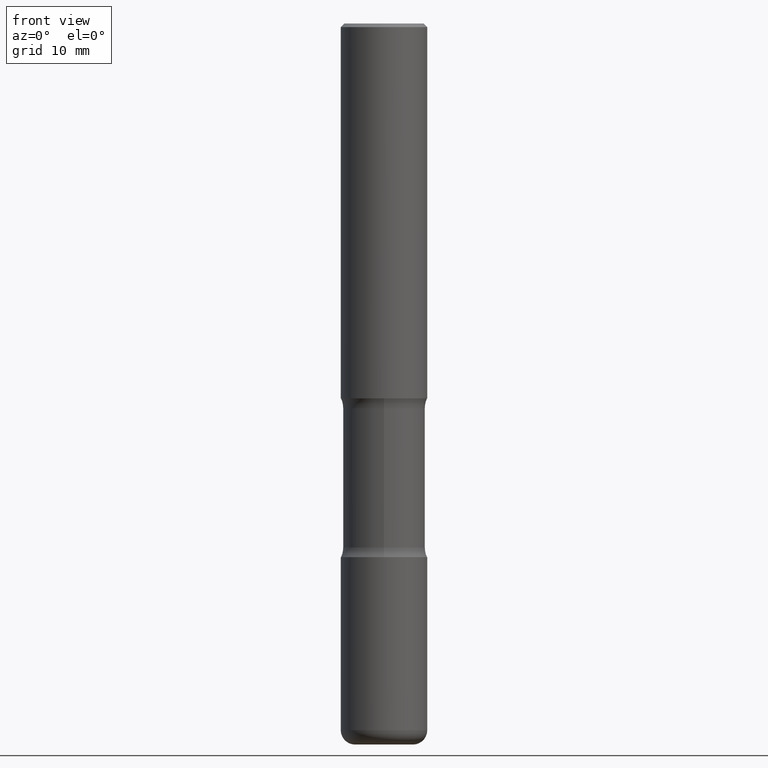
[diagram: clean part render]
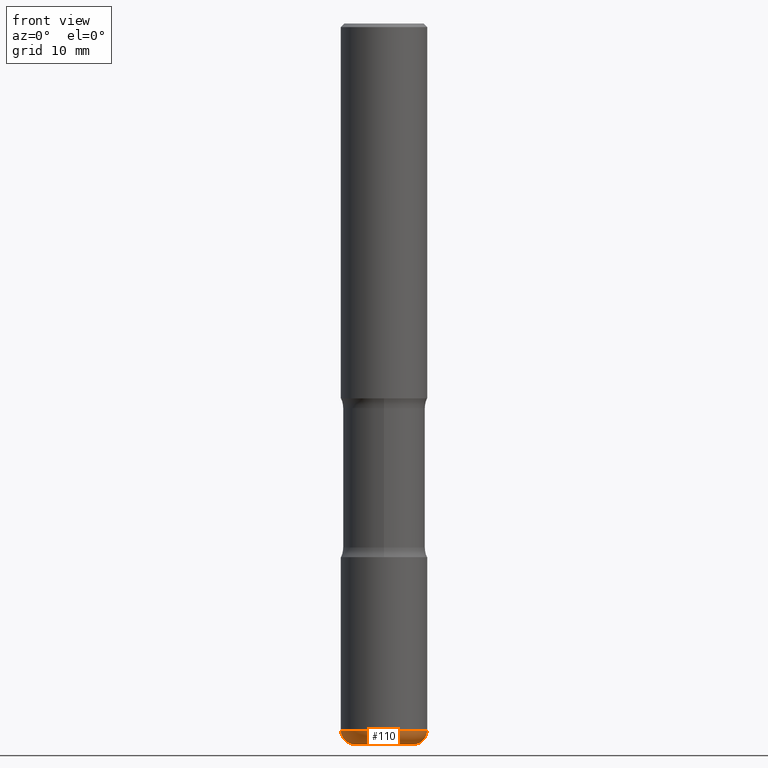
[diagram: same view with one face highlighted and labeled with its STEP entity id]
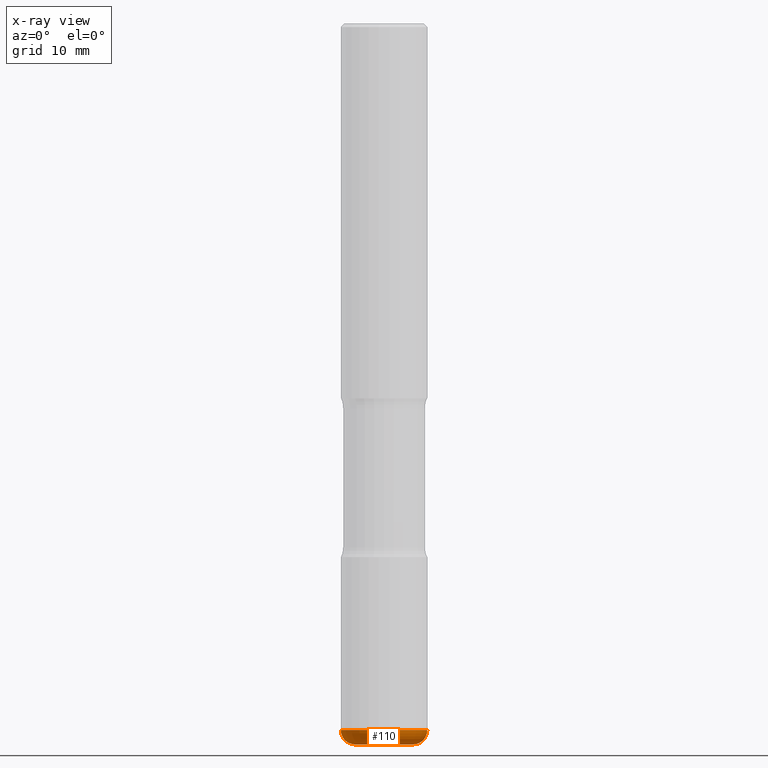
[diagram: x-ray of the same camera — body ghosted, the highlighted face saturated]
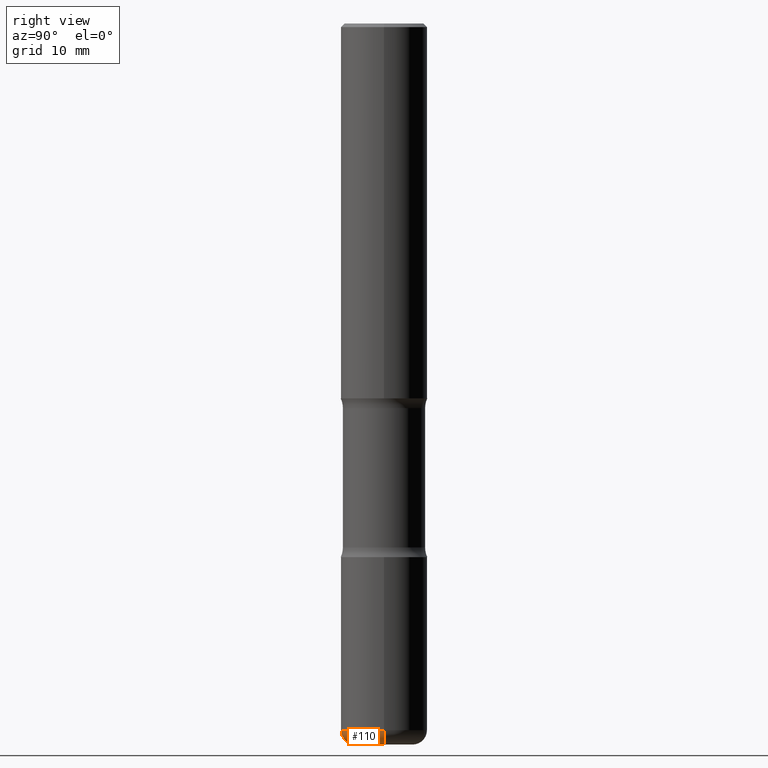
[diagram: same view with one face highlighted and labeled with its STEP entity id]
A machine part, front view. The second image highlights one B-rep face of the part: STEP entity #110.
The next image is the same camera in x-ray: the body ghosted, the highlighted face saturated — about 0% of this face is hidden behind the body in this view.
A second angle (right view) of the same face is appended — the face is thin or edge-on in the first view.
In plain terms, the highlighted toroidal blend (fillet) surface has major radius 4.0005 mm and minor (blend) radius 1.999 mm.
Its self-contained STEP definition (entity closure, byte-faithful):
#6 = DIRECTION ( 'NONE',  ( 7.105427357601001859E-15, 1.000000000000000000, -3.491481338843145583E-15 ) ) ;
#31 = DIRECTION ( 'NONE',  ( 1.000000000000000000, -6.982962677686276177E-15, 0.000000000000000000 ) ) ;
#59 = CARTESIAN_POINT ( 'NONE',  ( -0.1575000000000002232, -1.235207764083634616E-14, -3.858299999999998509 ) ) ;
#63 = AXIS2_PLACEMENT_3D ( 'NONE', #508, #295, #31 ) ;
#82 = CARTESIAN_POINT ( 'NONE',  ( 0.2362000000000003264, -1.512055823412800345E-14, -3.858299999999998509 ) ) ;
#88 = CARTESIAN_POINT ( 'NONE',  ( 9.627810689950880306E-29, -1.374596203102546026E-14, -3.936999999999998945 ) ) ;
#97 = EDGE_CURVE ( 'NONE', #415, #350, #481, .T. ) ;
#110 = ADVANCED_FACE ( 'NONE', ( #288 ), #372, .T. ) ;
#133 = AXIS2_PLACEMENT_3D ( 'NONE', #213, #383, #175 ) ;
#144 = VERTEX_POINT ( 'NONE', #220 ) ;
#154 = ORIENTED_EDGE ( 'NONE', *, *, #167, .T. ) ;
#165 = CARTESIAN_POINT ( 'NONE',  ( 9.435352294904109900E-29, -1.347118244965850534E-14, -3.858299999999998509 ) ) ;
#167 = EDGE_CURVE ( 'NONE', #144, #415, #303, .T. ) ;
#169 = DIRECTION ( 'NONE',  ( -2.445468806185136597E-29, 3.491481338843145583E-15, 1.000000000000000000 ) ) ;
#175 = DIRECTION ( 'NONE',  ( 1.000000000000000000, -6.982962677686268288E-15, 4.883557194083113462E-29 ) ) ;
#181 = ORIENTED_EDGE ( 'NONE', *, *, #97, .T. ) ;
#182 = DIRECTION ( 'NONE',  ( 1.000000000000000000, -6.982962677686265133E-15, 0.000000000000000000 ) ) ;
#198 = CIRCLE ( 'NONE', #495, 0.2362000000000002153 ) ;
#213 = CARTESIAN_POINT ( 'NONE',  ( 9.435352294904109900E-29, -1.347118244965850534E-14, -3.858299999999998509 ) ) ;
#220 = CARTESIAN_POINT ( 'NONE',  ( -0.1575000000000002232, -1.220986886499822344E-14, -3.936999999999998945 ) ) ;
#270 = ORIENTED_EDGE ( 'NONE', *, *, #510, .F. ) ;
#288 = FACE_OUTER_BOUND ( 'NONE', #492, .T. ) ;
#295 = DIRECTION ( 'NONE',  ( -6.982962677686266711E-15, -1.000000000000000000, 3.491481338843145583E-15 ) ) ;
#303 = CIRCLE ( 'NONE', #315, 0.1575000000000002232 ) ;
#315 = AXIS2_PLACEMENT_3D ( 'NONE', #88, #433, #182 ) ;
#327 = CIRCLE ( 'NONE', #513, 0.07870000000000021423 ) ;
#332 = DIRECTION ( 'NONE',  ( 1.000000000000000000, -6.982962677686266711E-15, 0.000000000000000000 ) ) ;
#349 = EDGE_CURVE ( 'NONE', #406, #350, #198, .T. ) ;
#350 = VERTEX_POINT ( 'NONE', #82 ) ;
#372 = TOROIDAL_SURFACE ( 'NONE', #133, 0.1575000000000002232, 0.07870000000000021423 ) ;
#380 = CARTESIAN_POINT ( 'NONE',  ( 0.1575000000000002232, -1.484577865276104695E-14, -3.936999999999998945 ) ) ;
#383 = DIRECTION ( 'NONE',  ( -2.445468806185136597E-29, 3.491481338843145583E-15, 1.000000000000000000 ) ) ;
#399 = DIRECTION ( 'NONE',  ( -1.000000000000000000, 7.105427357600997914E-15, 0.000000000000000000 ) ) ;
#406 = VERTEX_POINT ( 'NONE', #457 ) ;
#410 = ORIENTED_EDGE ( 'NONE', *, *, #349, .F. ) ;
#415 = VERTEX_POINT ( 'NONE', #380 ) ;
#433 = DIRECTION ( 'NONE',  ( -2.445468806185136597E-29, 3.491481338843145583E-15, 1.000000000000000000 ) ) ;
#457 = CARTESIAN_POINT ( 'NONE',  ( -0.2362000000000003264, -1.179288050779314737E-14, -3.858299999999998509 ) ) ;
#481 = CIRCLE ( 'NONE', #63, 0.07870000000000021423 ) ;
#492 = EDGE_LOOP ( 'NONE', ( #270, #154, #181, #410 ) ) ;
#495 = AXIS2_PLACEMENT_3D ( 'NONE', #165, #169, #332 ) ;
#508 = CARTESIAN_POINT ( 'NONE',  ( 0.1575000000000002232, -1.457099907139409361E-14, -3.858299999999998509 ) ) ;
#510 = EDGE_CURVE ( 'NONE', #144, #406, #327, .T. ) ;
#513 = AXIS2_PLACEMENT_3D ( 'NONE', #59, #6, #399 ) ;